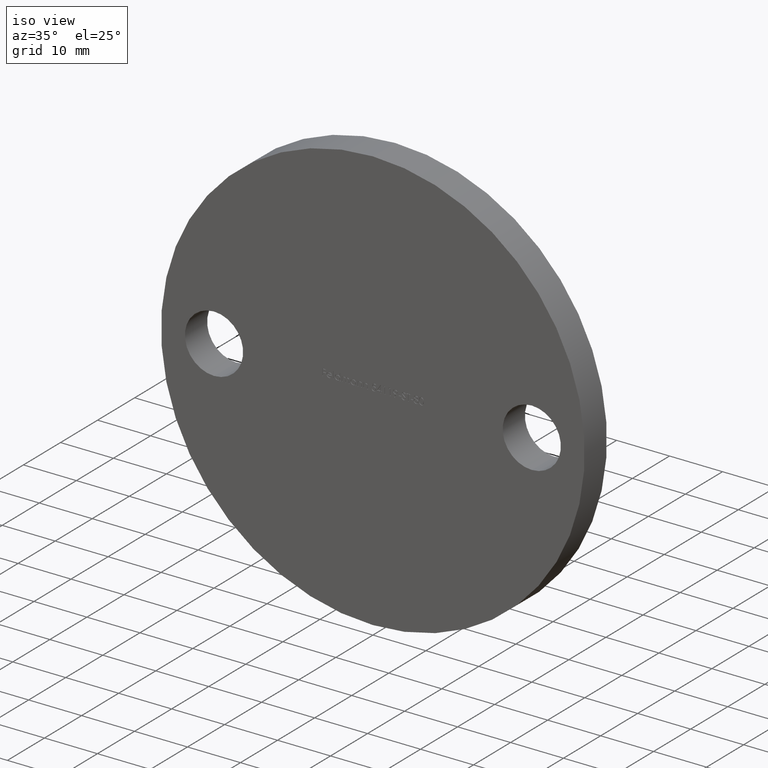
[diagram: clean part render]
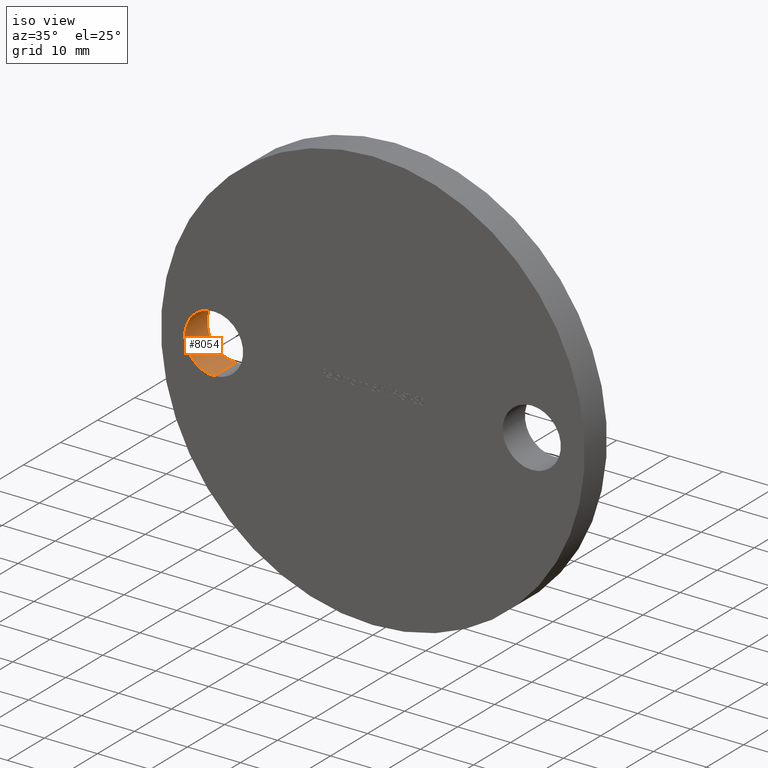
[diagram: same view with one face highlighted and labeled with its STEP entity id]
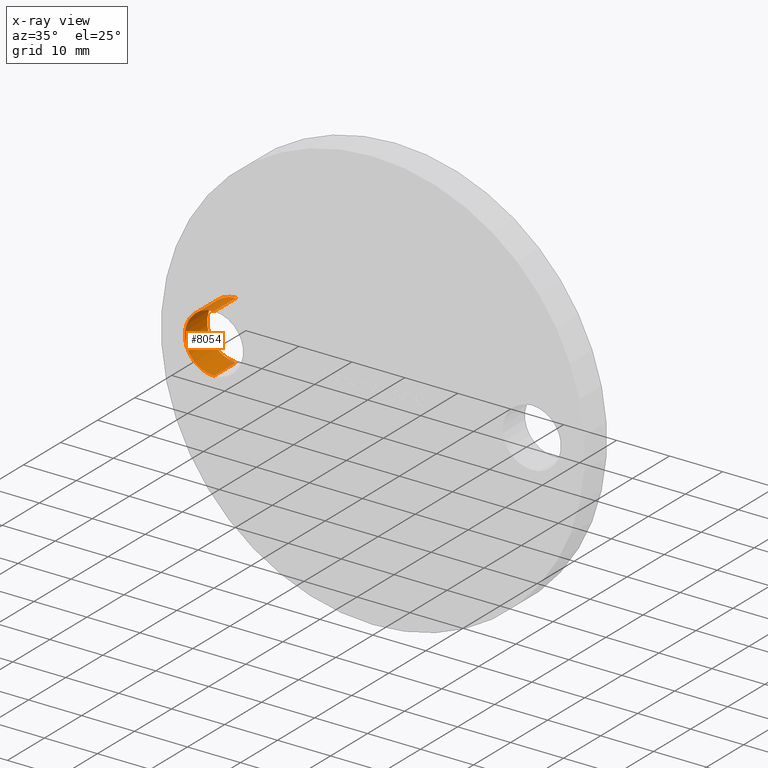
[diagram: x-ray of the same camera — body ghosted, the highlighted face saturated]
A machine part, iso view. The second image highlights one B-rep face of the part: STEP entity #8054.
The next image is the same camera in x-ray: the body ghosted, the highlighted face saturated — about 0% of this face is hidden behind the body in this view.
In plain terms, the highlighted cylindrical surface (edge-blend (fillet) strip) has radius 5.5 mm, axis along (-0, 1, -0).
Its self-contained STEP definition (entity closure, byte-faithful):
#111 = ORIENTED_EDGE ( 'NONE', *, *, #858, .T. ) ;
#858 = EDGE_CURVE ( 'NONE', #3345, #10840, #1193, .T. ) ;
#1087 = DIRECTION ( 'NONE',  ( 0.0000000000000000000, 0.0000000000000000000, 1.000000000000000000 ) ) ;
#1193 = LINE ( 'NONE', #11490, #2939 ) ;
#1290 = CIRCLE ( 'NONE', #10786, 5.499999999999996400 ) ;
#1950 = VERTEX_POINT ( 'NONE', #12643 ) ;
#2098 = DIRECTION ( 'NONE',  ( 0.0000000000000000000, 0.0000000000000000000, 1.000000000000000000 ) ) ;
#2742 = DIRECTION ( 'NONE',  ( 0.0000000000000000000, 0.0000000000000000000, 1.000000000000000000 ) ) ;
#2939 = VECTOR ( 'NONE', #11619, 1000.000000000000000 ) ;
#3013 = AXIS2_PLACEMENT_3D ( 'NONE', #4413, #8682, #2742 ) ;
#3185 = AXIS2_PLACEMENT_3D ( 'NONE', #7233, #8300, #1087 ) ;
#3345 = VERTEX_POINT ( 'NONE', #5707 ) ;
#3463 = FACE_OUTER_BOUND ( 'NONE', #9435, .T. ) ;
#4125 = VECTOR ( 'NONE', #8550, 1000.000000000000000 ) ;
#4323 = ORIENTED_EDGE ( 'NONE', *, *, #4369, .F. ) ;
#4369 = EDGE_CURVE ( 'NONE', #3345, #10622, #1290, .T. ) ;
#4413 = CARTESIAN_POINT ( 'NONE',  ( -30.00000000000000000, 6.000000000000000000, 0.0000000000000000000 ) ) ;
#5707 = CARTESIAN_POINT ( 'NONE',  ( -30.00000000000000000, 0.0000000000000000000, -5.499999999999996400 ) ) ;
#5998 = EDGE_CURVE ( 'NONE', #10622, #1950, #6475, .T. ) ;
#6020 = ORIENTED_EDGE ( 'NONE', *, *, #7244, .T. ) ;
#6475 = LINE ( 'NONE', #12674, #4125 ) ;
#7151 = DIRECTION ( 'NONE',  ( 0.0000000000000000000, 1.000000000000000000, 0.0000000000000000000 ) ) ;
#7211 = ORIENTED_EDGE ( 'NONE', *, *, #5998, .F. ) ;
#7233 = CARTESIAN_POINT ( 'NONE',  ( -30.00000000000000000, 0.0000000000000000000, 0.0000000000000000000 ) ) ;
#7244 = EDGE_CURVE ( 'NONE', #10840, #1950, #10932, .T. ) ;
#8054 = ADVANCED_FACE ( 'NONE', ( #3463 ), #10764, .F. ) ;
#8300 = DIRECTION ( 'NONE',  ( -0.0000000000000000000, 1.000000000000000000, -0.0000000000000000000 ) ) ;
#8550 = DIRECTION ( 'NONE',  ( -0.0000000000000000000, 1.000000000000000000, -0.0000000000000000000 ) ) ;
#8682 = DIRECTION ( 'NONE',  ( 0.0000000000000000000, 1.000000000000000000, 0.0000000000000000000 ) ) ;
#9435 = EDGE_LOOP ( 'NONE', ( #4323, #111, #6020, #7211 ) ) ;
#10081 = CARTESIAN_POINT ( 'NONE',  ( -30.00000000000000000, 6.000000000000000000, -5.499999999999996400 ) ) ;
#10540 = CARTESIAN_POINT ( 'NONE',  ( -30.00000000000000000, 0.0000000000000000000, 5.499999999999996400 ) ) ;
#10622 = VERTEX_POINT ( 'NONE', #10540 ) ;
#10764 = CYLINDRICAL_SURFACE ( 'NONE', #3185, 5.499999999999996400 ) ;
#10786 = AXIS2_PLACEMENT_3D ( 'NONE', #12136, #7151, #2098 ) ;
#10840 = VERTEX_POINT ( 'NONE', #10081 ) ;
#10932 = CIRCLE ( 'NONE', #3013, 5.499999999999996400 ) ;
#11490 = CARTESIAN_POINT ( 'NONE',  ( -30.00000000000000000, 0.0000000000000000000, -5.499999999999996400 ) ) ;
#11619 = DIRECTION ( 'NONE',  ( -0.0000000000000000000, 1.000000000000000000, -0.0000000000000000000 ) ) ;
#12136 = CARTESIAN_POINT ( 'NONE',  ( -30.00000000000000000, 0.0000000000000000000, 0.0000000000000000000 ) ) ;
#12643 = CARTESIAN_POINT ( 'NONE',  ( -30.00000000000000000, 6.000000000000000000, 5.499999999999996400 ) ) ;
#12674 = CARTESIAN_POINT ( 'NONE',  ( -30.00000000000000000, 0.0000000000000000000, 5.499999999999996400 ) ) ;